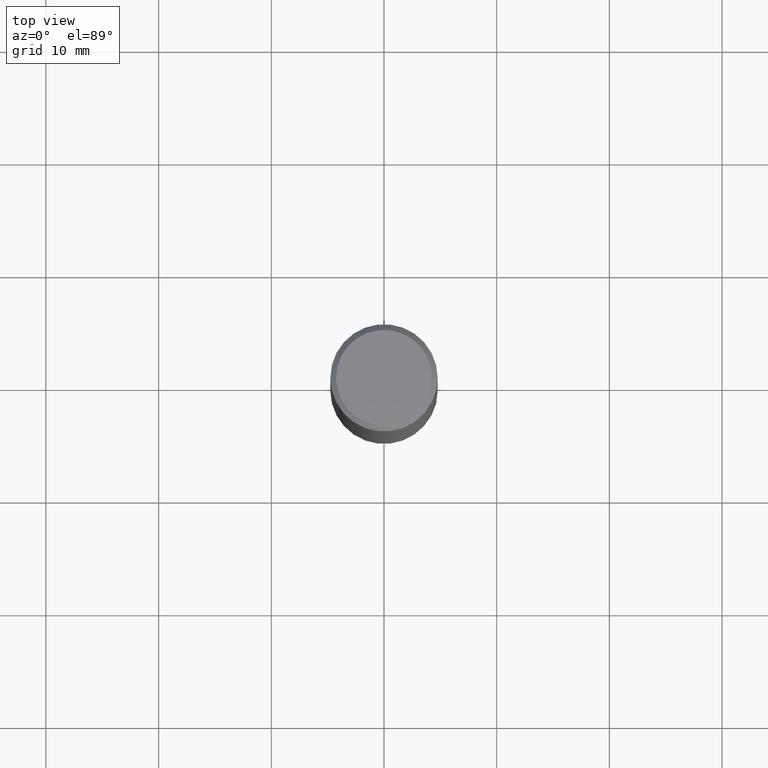
[diagram: clean part render]
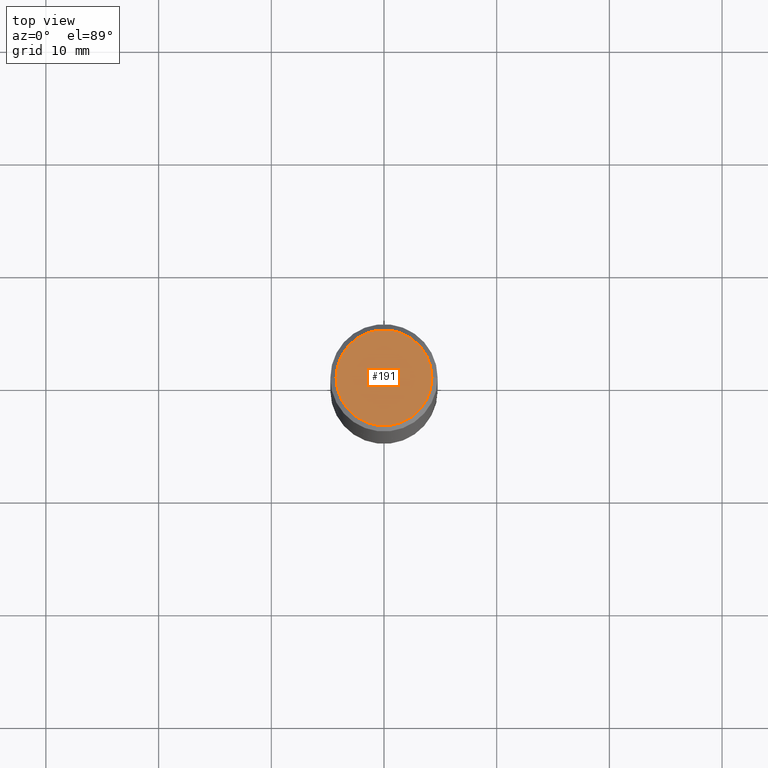
[diagram: same view with one face highlighted and labeled with its STEP entity id]
A machine part, top view. The second image highlights one B-rep face of the part: STEP entity #191.
In plain terms, the highlighted planar face has unit normal (0, -0, -1).
Its self-contained STEP definition (entity closure, byte-faithful):
#1 = VERTEX_POINT ( 'NONE', #120 ) ;
#9 = DIRECTION ( 'NONE',  ( 1.000000000000000000, -6.982962677686266711E-15, 4.876176775795936914E-29 ) ) ;
#20 = EDGE_CURVE ( 'NONE', #252, #1, #185, .T. ) ;
#26 = FACE_OUTER_BOUND ( 'NONE', #209, .T. ) ;
#73 = DIRECTION ( 'NONE',  ( -2.445468806185136597E-29, 3.491481338843145583E-15, 1.000000000000000000 ) ) ;
#96 = CARTESIAN_POINT ( 'NONE',  ( 0.000000000000000000, 0.000000000000000000, 0.000000000000000000 ) ) ;
#98 = AXIS2_PLACEMENT_3D ( 'NONE', #233, #337, #180 ) ;
#114 = ORIENTED_EDGE ( 'NONE', *, *, #20, .T. ) ;
#120 = CARTESIAN_POINT ( 'NONE',  ( 0.1674999999999998157, -1.252653207992877105E-15, 8.469775550109232378E-30 ) ) ;
#130 = DIRECTION ( 'NONE',  ( 1.000000000000000000, -6.982962677686266711E-15, 4.876176775795936914E-29 ) ) ;
#132 = DIRECTION ( 'NONE',  ( -2.445468806185136597E-29, 3.491481338843145583E-15, 1.000000000000000000 ) ) ;
#147 = CARTESIAN_POINT ( 'NONE',  ( -0.1674999999999998157, 1.204561061900879272E-15, -8.301862719484101980E-30 ) ) ;
#150 = ORIENTED_EDGE ( 'NONE', *, *, #257, .T. ) ;
#154 = CARTESIAN_POINT ( 'NONE',  ( 0.000000000000000000, 0.000000000000000000, 0.000000000000000000 ) ) ;
#180 = DIRECTION ( 'NONE',  ( -1.000000000000000000, 6.982962677686265922E-15, -4.876176775795935793E-29 ) ) ;
#185 = CIRCLE ( 'NONE', #359, 0.1674999999999998157 ) ;
#190 = AXIS2_PLACEMENT_3D ( 'NONE', #96, #132, #9 ) ;
#191 = ADVANCED_FACE ( 'NONE', ( #26 ), #207, .F. ) ;
#207 = PLANE ( 'NONE',  #98 ) ;
#209 = EDGE_LOOP ( 'NONE', ( #114, #150 ) ) ;
#233 = CARTESIAN_POINT ( 'NONE',  ( 1.169646248512448412E-15, 0.1674999999999998157, -5.848231242562262767E-16 ) ) ;
#249 = CIRCLE ( 'NONE', #190, 0.1674999999999998157 ) ;
#252 = VERTEX_POINT ( 'NONE', #147 ) ;
#257 = EDGE_CURVE ( 'NONE', #1, #252, #249, .T. ) ;
#337 = DIRECTION ( 'NONE',  ( 2.438088387897960049E-29, -3.491481338843145188E-15, -1.000000000000000000 ) ) ;
#359 = AXIS2_PLACEMENT_3D ( 'NONE', #154, #73, #130 ) ;